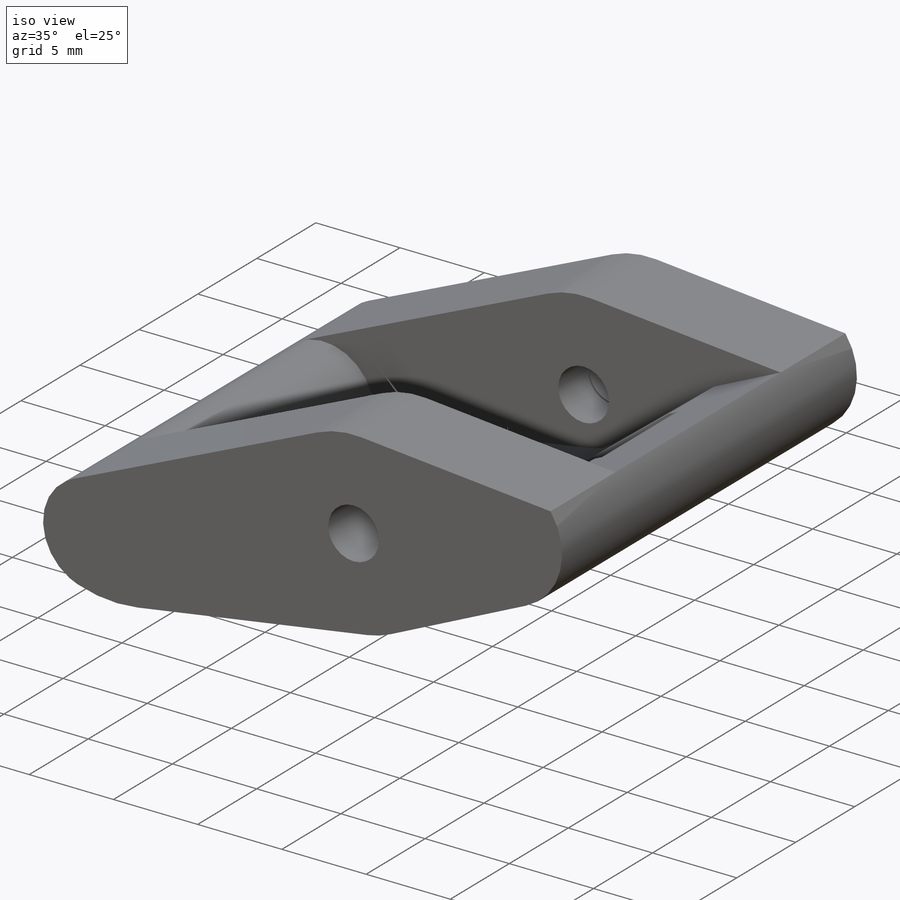
[diagram: iso view]
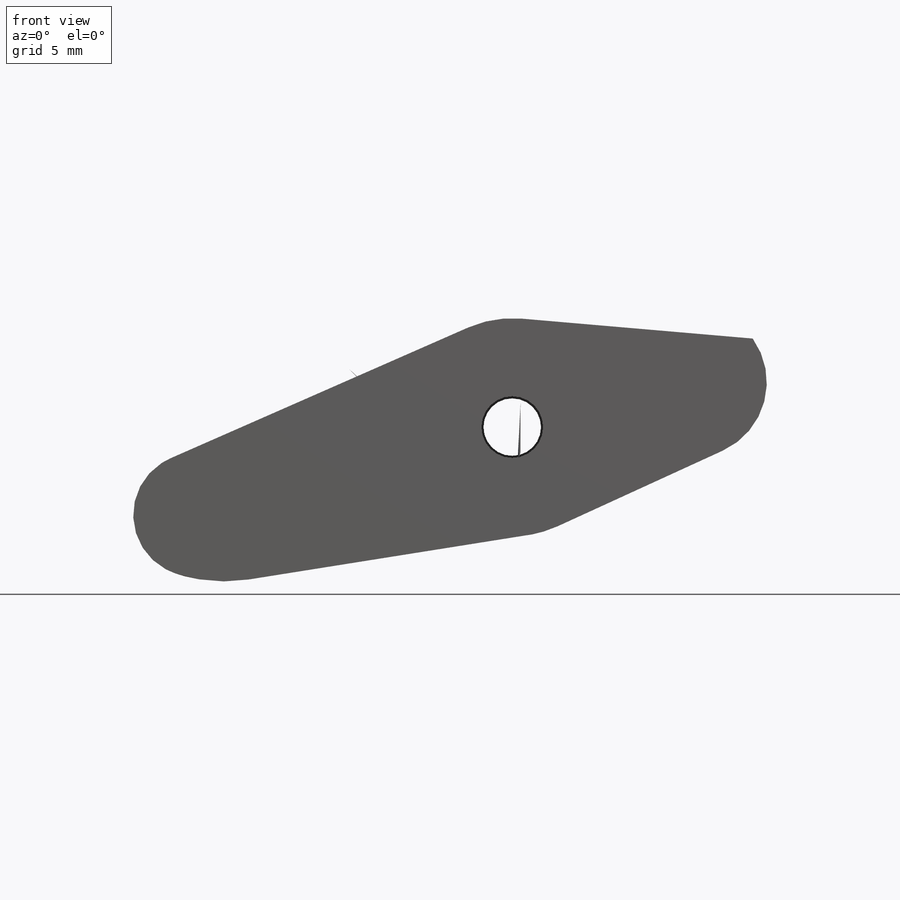
[diagram: front view]
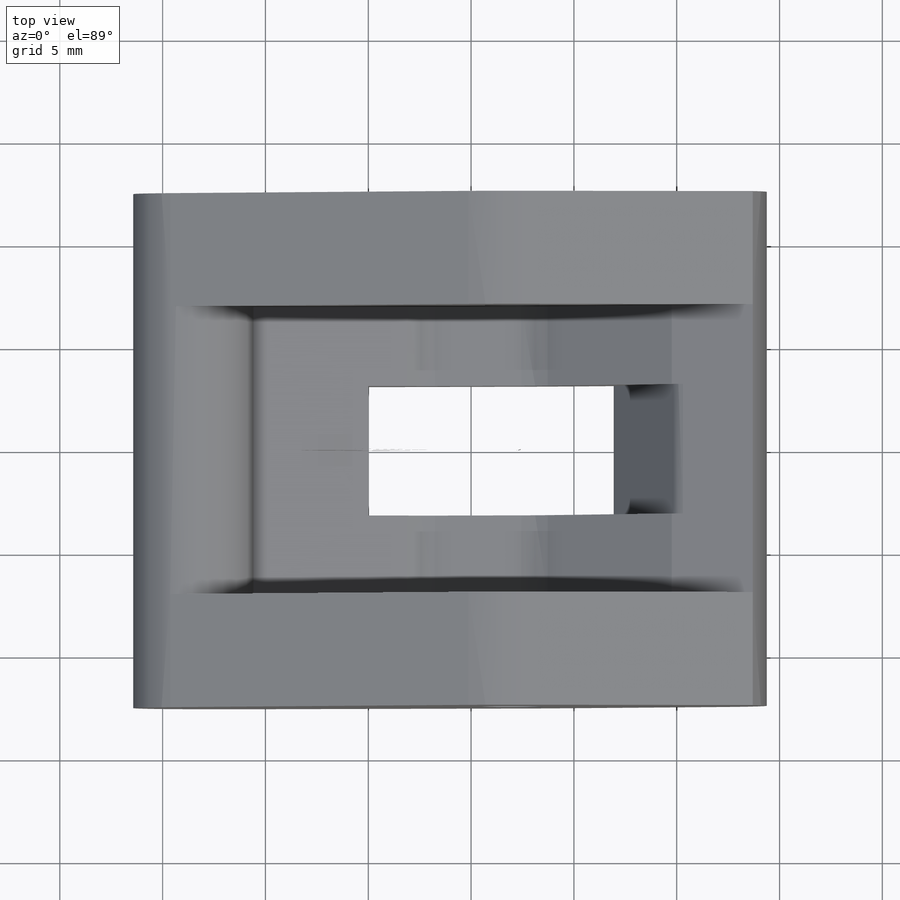
[diagram: top view]
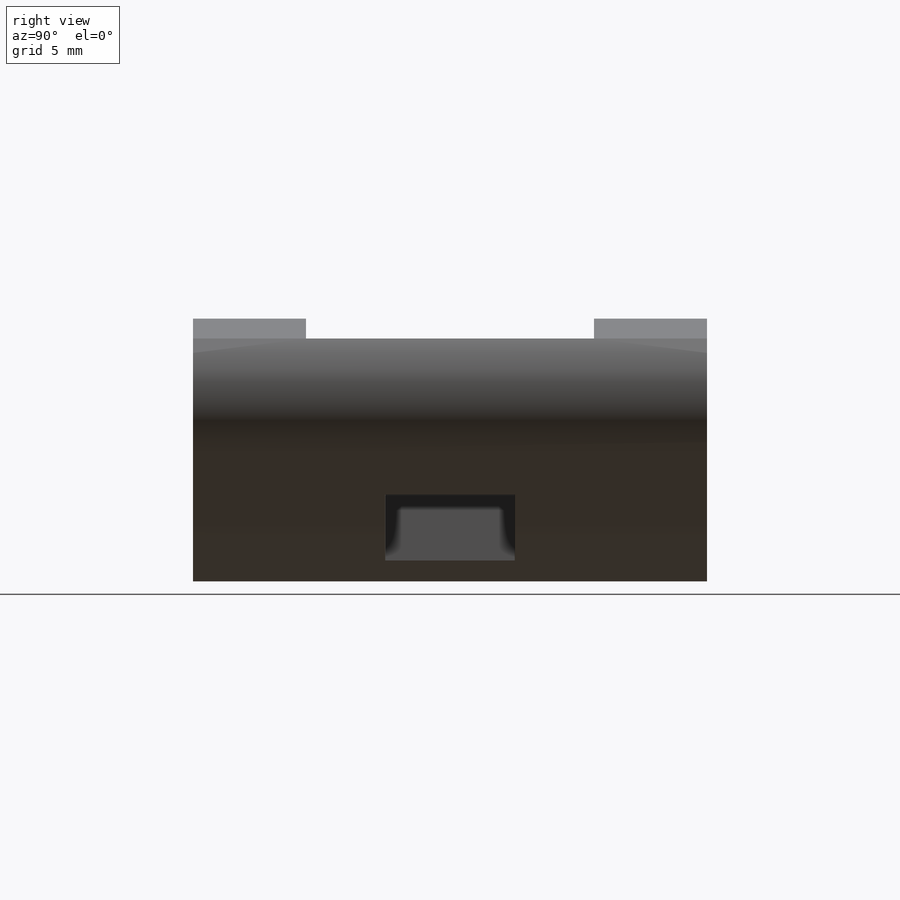
[diagram: right view]
SOLIDWORKS PART (.sldprt)
format: sldprt  version: not decoded by parser v0  size: 955,392 bytes
history: native  units: mm
features: sketch x35, extrude x20, cut_extrude x15, fillet x4, mirror x2, material x1 (+12 scaffold rows collapsed)
feature tree (89):
  scaffold x12  (default folders/planes/origin — collapsed)
  material  "ABS"
  sketch  "Sketch1"  dims[D1=15.0mm D2=10.6mm D4=3.0mm D3=14.0mm]
  extrude  "Boss-Extrude1"  Depth=12.5mm
  sketch  "Sketch2"  dims[D1=3.0mm]
  extrude  "Boss-Extrude2"  Depth=10.5mm
  sketch  "Sketch9"  dims[c1.D1=2.3mm c1.D3=18.0mm c1.D4=1.5mm c1.D2=~8.653414mm c2.D2=175.0deg c2.D3=~8.653414mm c2.D4=2.5mm]
  extrude  "Boss-Extrude3"  [1 undecoded]
  sketch  "Sketch10"  dims[D1=3.0mm]
  extrude  "Boss-Extrude4"  [1 undecoded]
  sketch  "Sketch3"  dims[D1=6.3mm D2=1.0mm D3=11.3mm]
  cut_extrude  "Cut-Extrude1"  Depth=10mm
  sketch  "Sketch4"  dims[D1=2.3mm D2=5.5mm D3=5.5mm]
  cut_extrude  "Cut-Extrude2"  Depth=8.3mm
  sketch  "Sketch5"  dims[D1=10.0mm]
  cut_extrude  "Cut-Extrude3"  [1 undecoded]
  sketch  "Sketch11"
  cut_extrude  "Cut-Extrude5"  Depth=28mm
  sketch  "Sketch13"  dims[D1=0.7mm]
  cut_extrude  "Cut-Extrude8"  Depth=28mm
  sketch  "Sketch14"
  cut_extrude  "Cut-Extrude9"  Depth=28mm
  sketch  "Sketch15"
  extrude  "Boss-Extrude5"  [1 undecoded]
  sketch  "Sketch16"
  cut_extrude  "Cut-Extrude10"  [1 undecoded]
  sketch  "Sketch17"
  extrude  "Boss-Extrude6"  [1 undecoded]
  sketch  "Sketch18"
  extrude  "Boss-Extrude7"  [1 undecoded]
  sketch  "Sketch19"
  extrude  "Boss-Extrude8"  [1 undecoded]
  sketch  "Sketch21"
  cut_extrude  "Cut-Extrude11"  [1 undecoded]
  sketch  "Sketch25"
  extrude  "Boss-Extrude9"  [1 undecoded]
  sketch  "Sketch26"
  cut_extrude  "Cut-Extrude12"  [1 undecoded]
  sketch  "Sketch27"  dims[D1=2.8mm D2=4.0mm]
  cut_extrude  "Cut-Extrude13"  Depth=7mm
  sketch  "Sketch28"
  cut_extrude  "Cut-Extrude14"  [1 undecoded]
  sketch  "Sketch29"
  extrude  "Boss-Extrude10"  [1 undecoded]
  mirror  "Mirror1"
  sketch  "Sketch38"
  cut_extrude  "Cut-Extrude20"  Depth=22mm
  sketch  "Sketch41"  dims[D1=5.0mm]
  cut_extrude  "Cut-Extrude23"  Depth=14mm
  sketch  "Sketch43"
  extrude  "Boss-Extrude12"  [1 undecoded]
  fillet  "Fillet7"  Radius=1mm
  sketch  "Sketch45"
  cut_extrude  "Cut-Extrude24"  Depth=10mm
  sketch  "Sketch46"
  extrude  "Boss-Extrude13"  [1 undecoded]
  sketch  "Sketch47"
  extrude  "Boss-Extrude14"  [1 undecoded]
  fillet  "Fillet8"  Radius=2mm
  fillet  "Fillet9"  Radius=3mm
  sketch  "Sketch48"
  extrude  "Boss-Extrude15"  [1 undecoded]
  sketch  "Sketch49"
  extrude  "Boss-Extrude16"  [1 undecoded]
  sketch  "Sketch50"  dims[D1=7.0mm]
  extrude  "Boss-Extrude17"  [1 undecoded]
  sketch  "Sketch51"  dims[D1=5.5mm]
  extrude  "Boss-Extrude18"  Depth=7mm
  fillet  "Fillet10"  Radius=0.5mm
  sketch  "Sketch52"
  extrude  "Boss-Extrude19"  [1 undecoded]
  sketch  "Sketch53"
  extrude  "Boss-Extrude20"  Depth=3mm
  mirror  "Mirror2"
  sketch  "Sketch54"
  extrude  "Boss-Extrude21"  Depth=3mm
  sketch  "Sketch55"  dims[D1=2.8mm]
  cut_extrude  "Cut-Extrude25"  [1 undecoded]
decode coverage: 31 of 76 modeling features carry decoded parameters
note: ~ marks probable driven/reference dimensions
note: 21 parameter values undecoded
summary: no parameter record found for 21 features
note: suppression state not decoded; provenance and decode notes live in map.json
